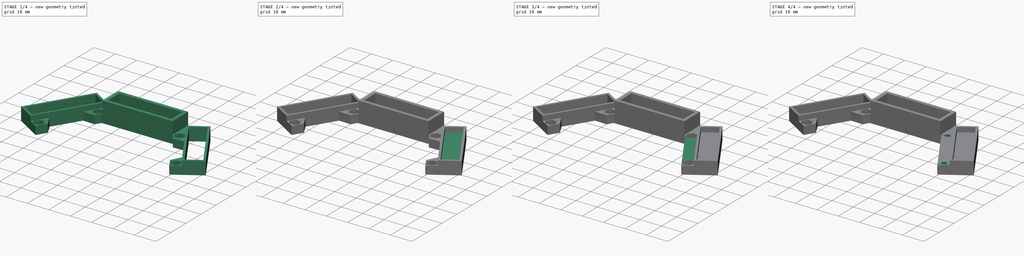
[diagram: build sequence overview — one tinted view per stage of 4, left to right]
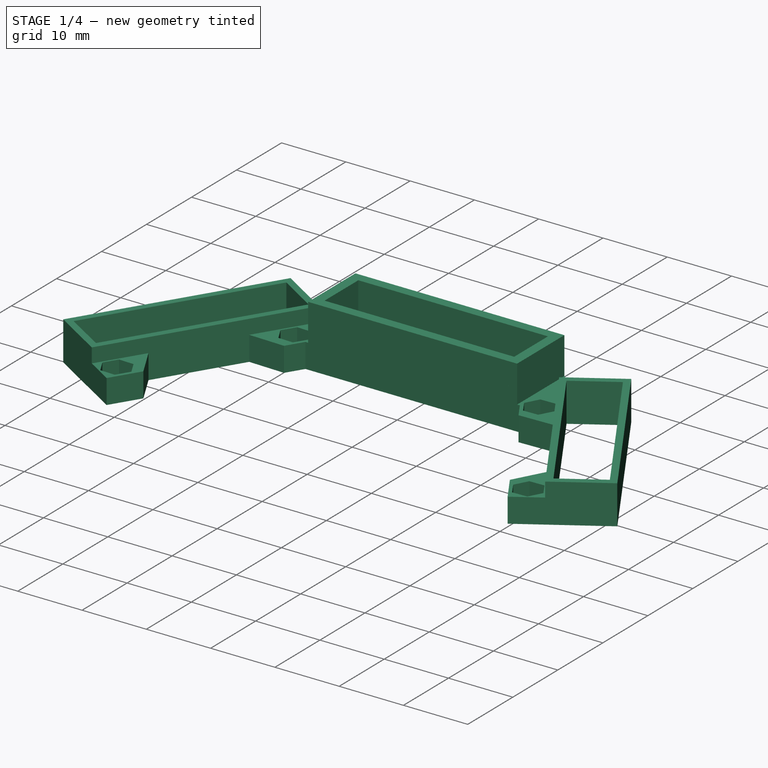
[diagram: stage 1 of 4 — iso view after this stage's code; geometry added in this stage tinted green]
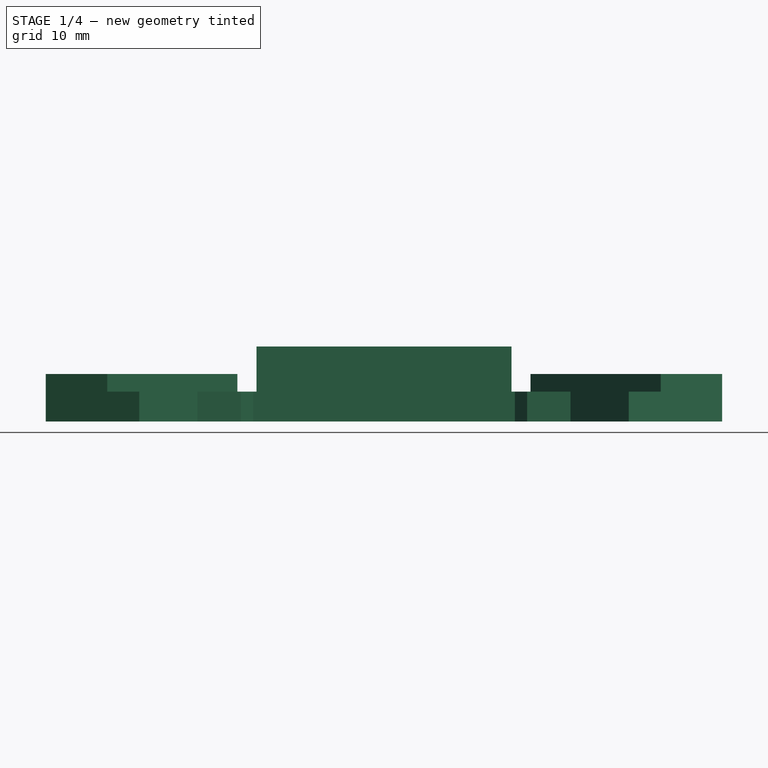
[diagram: stage 1 of 4 — front view after this stage's code; geometry added in this stage tinted green]
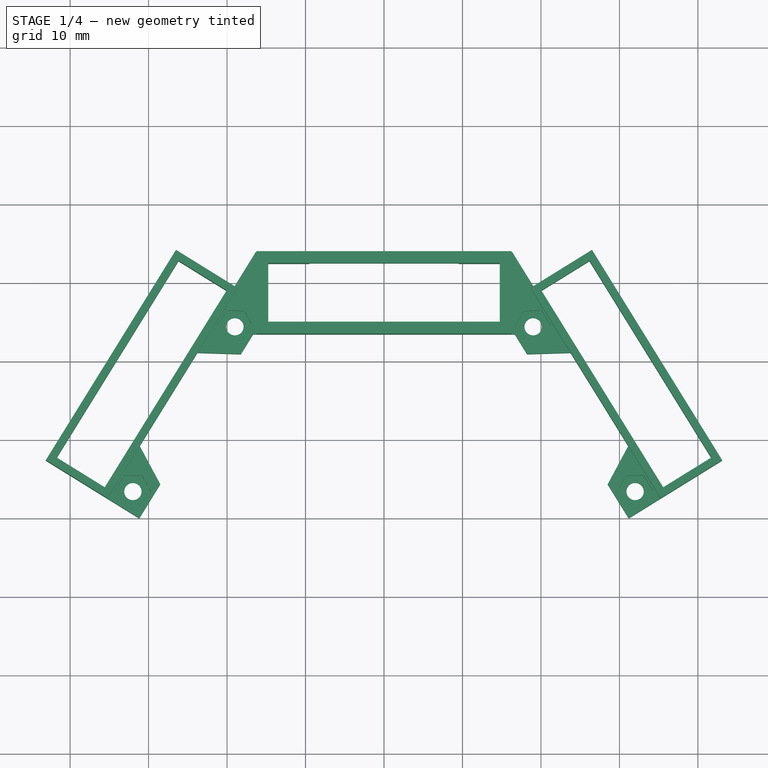
[diagram: stage 1 of 4 — top view after this stage's code; geometry added in this stage tinted green]
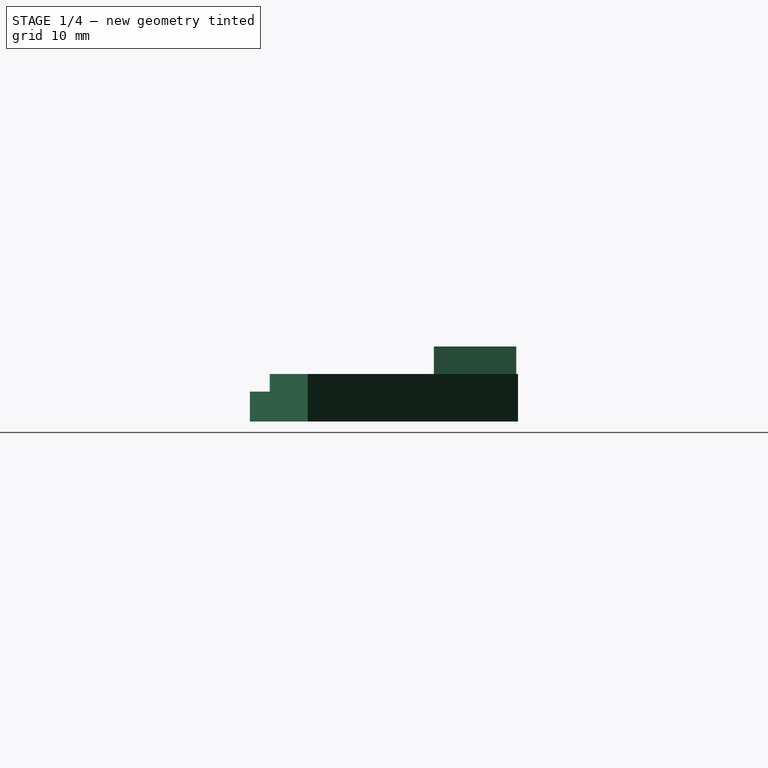
[diagram: stage 1 of 4 — right view after this stage's code; geometry added in this stage tinted green]
FCSTD DOCUMENT  (FreeCAD 0.16R6706 (Git))
Label: Soporte de sensores de distancia
License: All rights reserved
LicenseURL: http://en.wikipedia.org/wiki/All_rights_reserved
objects: Sketcher::SketchObject×9, PartDesign::Pocket×5, PartDesign::Pad×4, Part::Feature×2, Part::Mirroring×1, Part::Fuse×1
note: 31 computed .brp shape members not serialized (recipe doc carries the construction recipe); baked Part::Feature solids carry a one-line shape summary decoded from their .brp

FEATURE [Part::Feature] Pocket004001  label="Pocket005"
  shape: bbox 43.09 x 34.17 x 6.05 mm, 44 faces (baked)
FEATURE [Part::Mirroring] Part__Mirroring  label="Pocket005 (Mirror #1)"
  Base = (0,0,0)
  Normal = (0,0,1)
  Source = -> Pocket004001
FEATURE [Part::Fuse] Fusion
  Base = -> Pocket004001
  Tool = -> Part__Mirroring
FEATURE [Part::Feature] Fusion001  label="Soporte de sensores de distancia V1"
  shape: bbox 86.19 x 34.17 x 6.05 mm, 77 faces (baked)
FEATURE [Sketcher::SketchObject] Sketch008
  ExternalGeometry = -> [Fusion001]
  Placement = pos=(0,0,6.05) rot=(0,0,1;0rad)
  Support = -> Fusion001 [Face76]
  sketch-geometry (8):
    g0: LineSegment StartX=-16.25 StartY=33.9415 StartZ=0 EndX=16.25 EndY=33.9415 EndZ=0
    g1: LineSegment StartX=16.25 StartY=23.4415 StartZ=0 EndX=16.25 EndY=33.9415 EndZ=0
    g2: LineSegment StartX=14.75 StartY=32.4415 StartZ=0 EndX=-14.75 EndY=32.4415 EndZ=0
    g3: LineSegment StartX=-14.75 StartY=32.4415 StartZ=0 EndX=-14.75 EndY=24.9415 EndZ=0
    g4: LineSegment StartX=-14.75 StartY=24.9415 StartZ=0 EndX=14.75 EndY=24.9415 EndZ=0
    g5: LineSegment StartX=14.75 StartY=32.4415 StartZ=0 EndX=14.75 EndY=24.9415 EndZ=0
    g6: LineSegment StartX=16.25 StartY=23.4415 StartZ=0 EndX=-16.25 EndY=23.4415 EndZ=0
    g7: LineSegment StartX=-16.25 StartY=33.9415 StartZ=0 EndX=-16.25 EndY=23.4415 EndZ=0
  constraints (16):
    c: Coincident(g0,g-3)
    c: Coincident(g0,g-7)
    c: Coincident(g1,g-10)
    c: Coincident(g1,g0)
    c: Coincident(g2,g-8)
    c: Coincident(g2,g-6)
    c: Coincident(g3,g2)
    c: Coincident(g3,g-5)
    c: Coincident(g4,g3)
    c: Coincident(g4,g-9)
    c: Coincident(g5,g2)
    c: Coincident(g5,g4)
    c: Coincident(g6,g1)
    c: Coincident(g6,g-4)
    c: Coincident(g7,g0)
    c: Coincident(g7,g6)
FEATURE [PartDesign::Pad] Pad003  label="Soporte de sensores de distancia V2"
  Length = 3.5
  Length2 = 100
  Sketch = -> Sketch008
  Type = 0
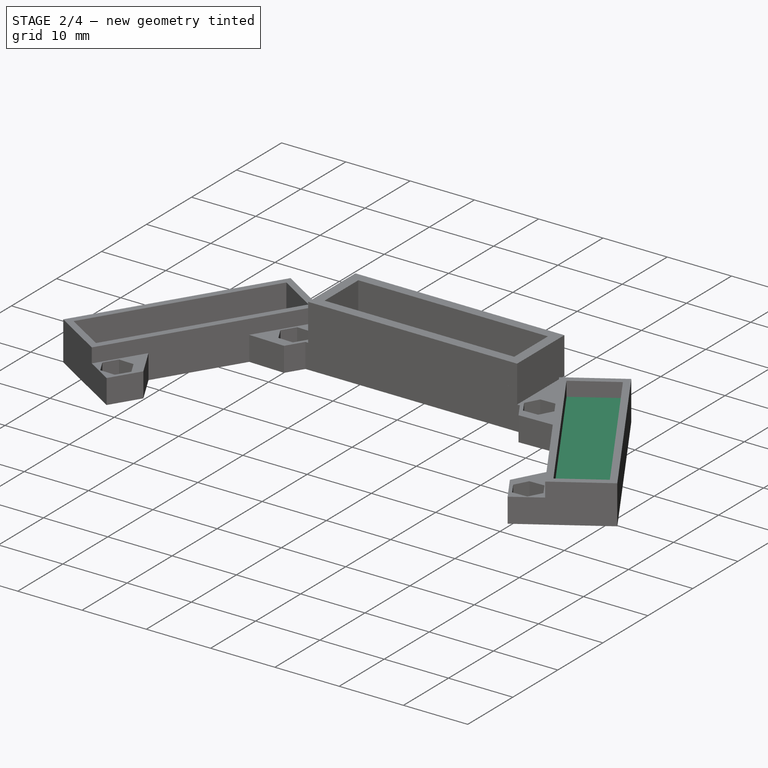
[diagram: stage 2 of 4 — iso view after this stage's code; geometry added in this stage tinted green]
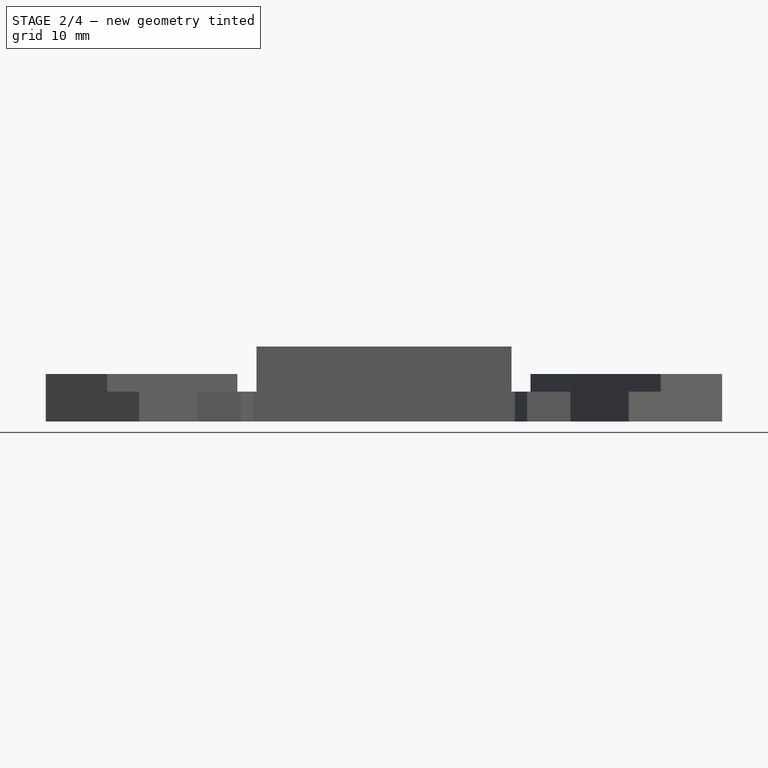
[diagram: stage 2 of 4 — front view after this stage's code; geometry added in this stage tinted green]
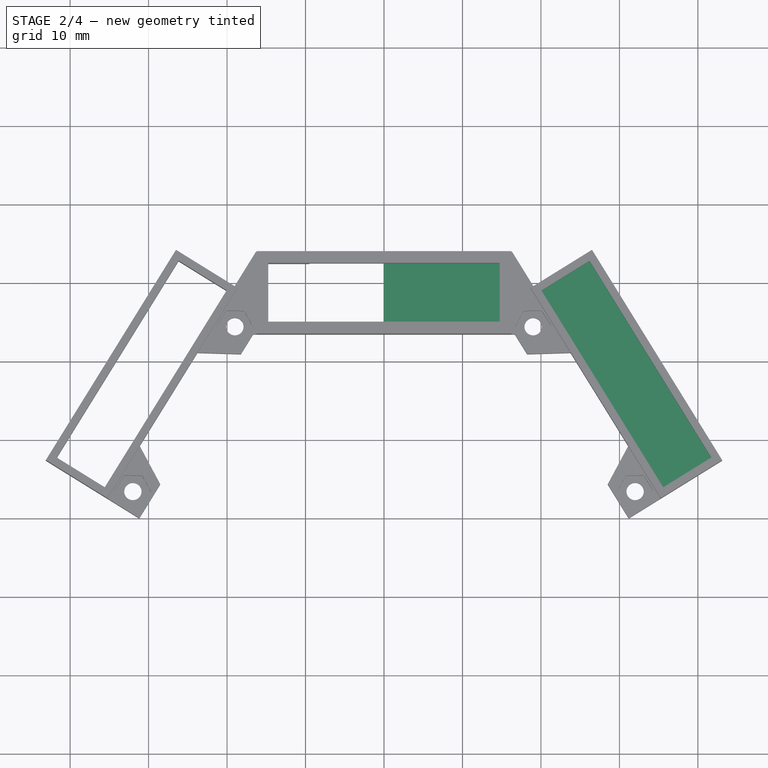
[diagram: stage 2 of 4 — top view after this stage's code; geometry added in this stage tinted green]
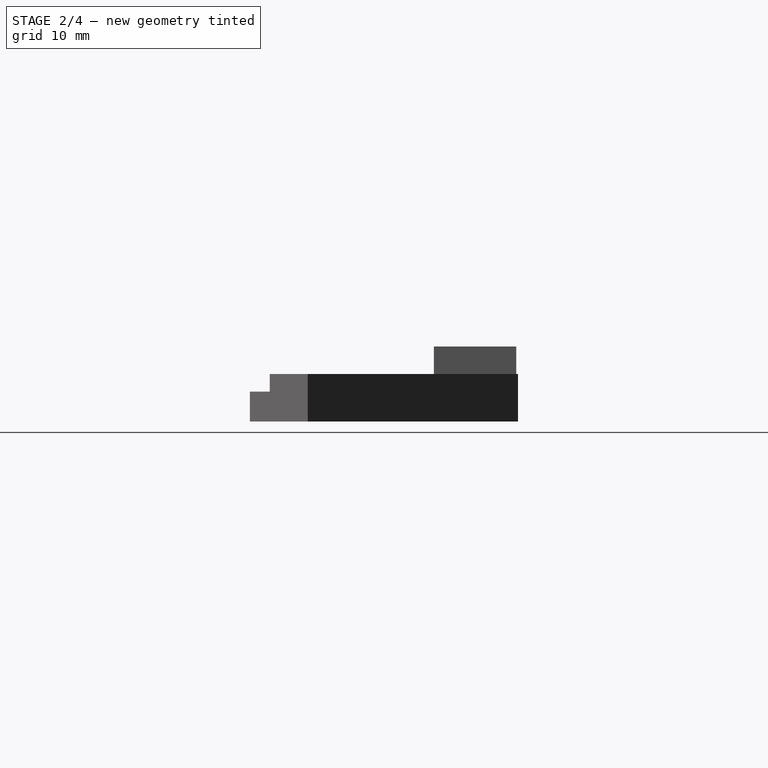
[diagram: stage 2 of 4 — right view after this stage's code; geometry added in this stage tinted green]
FEATURE [Sketcher::SketchObject] Sketch005
  ExternalGeometry = -> [Pad002]
  Placement = pos=(0,0,3.8) rot=(0,0,1;0rad)
  sketch-geometry (6):
    g0: LineSegment StartX=18.2418 StartY=20.9166 StartZ=0 EndX=23.7725 EndY=21.0865 EndZ=0
    g1: LineSegment StartX=23.7725 StartY=21.0865 StartZ=0 EndX=31.125 EndY=9.20937 EndZ=0
    g2: LineSegment StartX=31.125 StartY=9.20937 StartZ=0 EndX=28.5068 EndY=4.33472 EndZ=0
    g3: LineSegment StartX=28.5068 StartY=4.33472 StartZ=0 EndX=18.2418 EndY=20.9166 EndZ=0
    g4: LineSegment [constr] StartX=20.2156 StartY=22.4779 StartZ=0 EndX=20.2616 EndY=20.9787 EndZ=0
    g5: LineSegment [constr] StartX=30.7844 StartY=5.40515 StartZ=0 EndX=29.463 EndY=6.11491 EndZ=0
  constraints (18):
    c: PointOnObject(g0,g-4)
    c: PointOnObject(g0,g-3)
    c: Coincident(g1,g0)
    c: PointOnObject(g1,g-3)
    c: Coincident(g2,g1)
    c: PointOnObject(g2,g-4)
    c: Coincident(g3,g2)
    c: Coincident(g3,g0)
    c: Parallel(g0,g-5)
    c: Coincident(g4,g-5)
    c: PointOnObject(g4,g0)
    c: Perpendicular(g0,g4)
    c: Coincident(g5,g-6)
    c: PointOnObject(g5,g2)
    c: Perpendicular(g5,g2)
    c: Distance(g5) = 1.5
    c: Equal(g4,g5)
    c: Parallel(g2,g-6)
FEATURE [PartDesign::Pocket] Pocket002
  Length = 5
  Type = 1
FEATURE [Sketcher::SketchObject] Sketch006
  ExternalGeometry = -> [Pocket002]
  Placement = pos=(0,0,3.8) rot=(0,0,1;0rad)
  sketch-geometry (4):
    g0: LineSegment StartX=20.0569 StartY=28.9885 StartZ=0 EndX=26.1788 EndY=32.7783 EndZ=0
    g1: LineSegment StartX=26.1788 StartY=32.7783 StartZ=0 EndX=41.7063 EndY=7.69548 EndZ=0
    g2: LineSegment StartX=41.7063 StartY=7.69548 StartZ=0 EndX=35.5844 EndY=3.90572 EndZ=0
    g3: LineSegment StartX=35.5844 StartY=3.90572 StartZ=0 EndX=20.0569 EndY=28.9885 EndZ=0
  constraints (8):
    c: Coincident(g0,g-3)
    c: Coincident(g0,g-4)
    c: Coincident(g1,g0)
    c: Coincident(g1,g-5)
    c: Coincident(g2,g-6)
    c: Coincident(g3,g2)
    c: Coincident(g3,g0)
    c: Coincident(g1,g2)
FEATURE [PartDesign::Pocket] Pocket003
  Length = 5
  Type = 1
FEATURE [Sketcher::SketchObject] Sketch007
  ExternalGeometry = -> [Pocket003]
  Placement = pos=(0,0,3.8) rot=(0,0,1;0rad)
  sketch-geometry (4):
    g0: LineSegment StartX=0 StartY=32.4415 StartZ=0 EndX=0 EndY=24.9415 EndZ=0
    g1: LineSegment StartX=0 StartY=24.9415 StartZ=0 EndX=14.75 EndY=24.9415 EndZ=0
    g2: LineSegment StartX=14.75 StartY=24.9415 StartZ=0 EndX=14.75 EndY=32.4415 EndZ=0
    g3: LineSegment StartX=14.75 StartY=32.4415 StartZ=0 EndX=0 EndY=32.4415 EndZ=0
  constraints (11):
    c: Coincident(g0,g-3)
    c: Coincident(g0,g-4)
    c: Coincident(g1,g-5)
    c: Horizontal(g1)
    c: Vertical(g2)
    c: Coincident(g3,g0)
    c: Horizontal(g3)
    c: Coincident(g3,g-6)
    c: Coincident(g2,g3)
    c: Coincident(g1,g2)
    c: Coincident(g1,g0)
FEATURE [PartDesign::Pocket] Pocket004
  Length = 5
  Type = 1
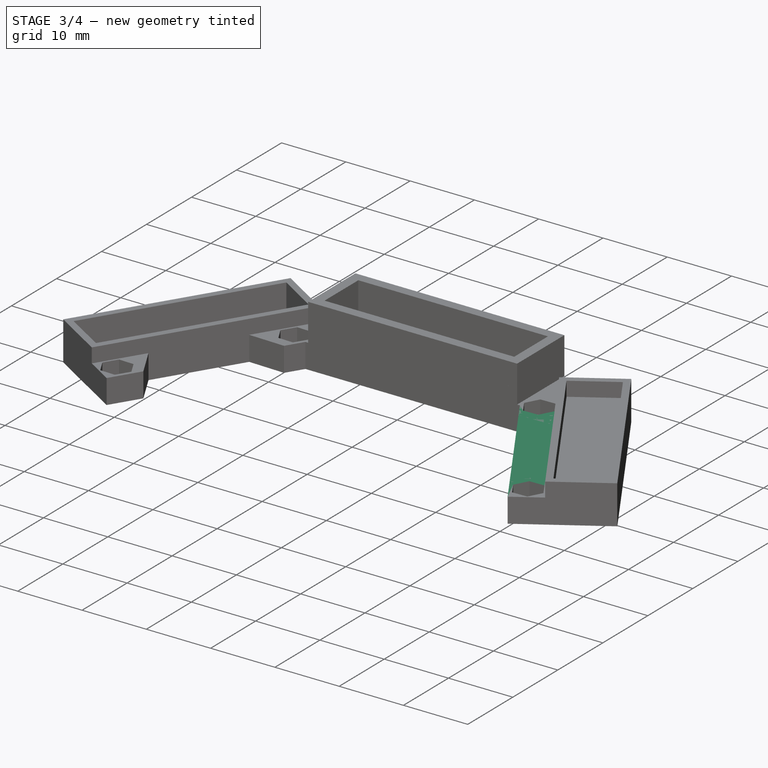
[diagram: stage 3 of 4 — iso view after this stage's code; geometry added in this stage tinted green]
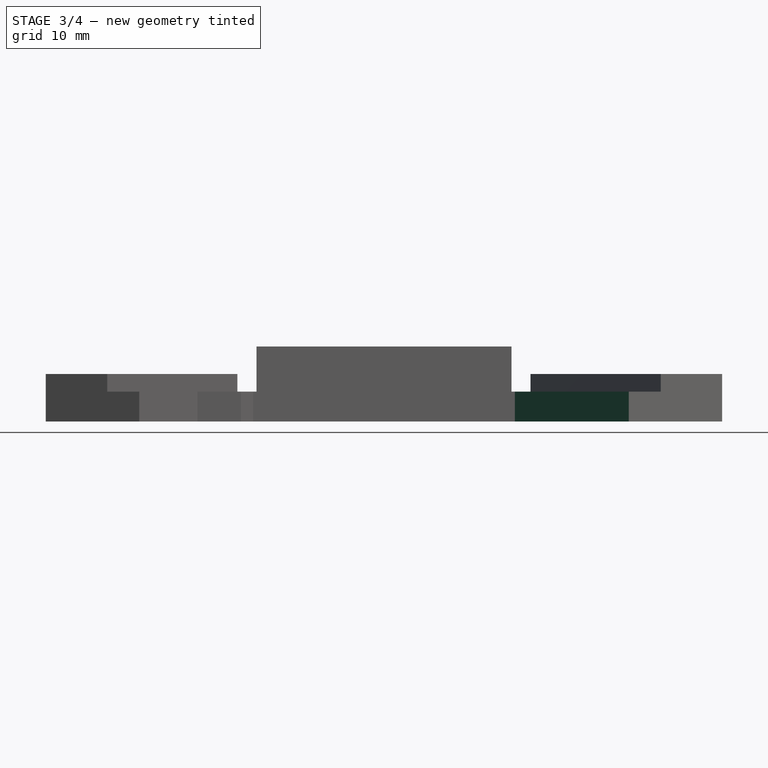
[diagram: stage 3 of 4 — front view after this stage's code; geometry added in this stage tinted green]
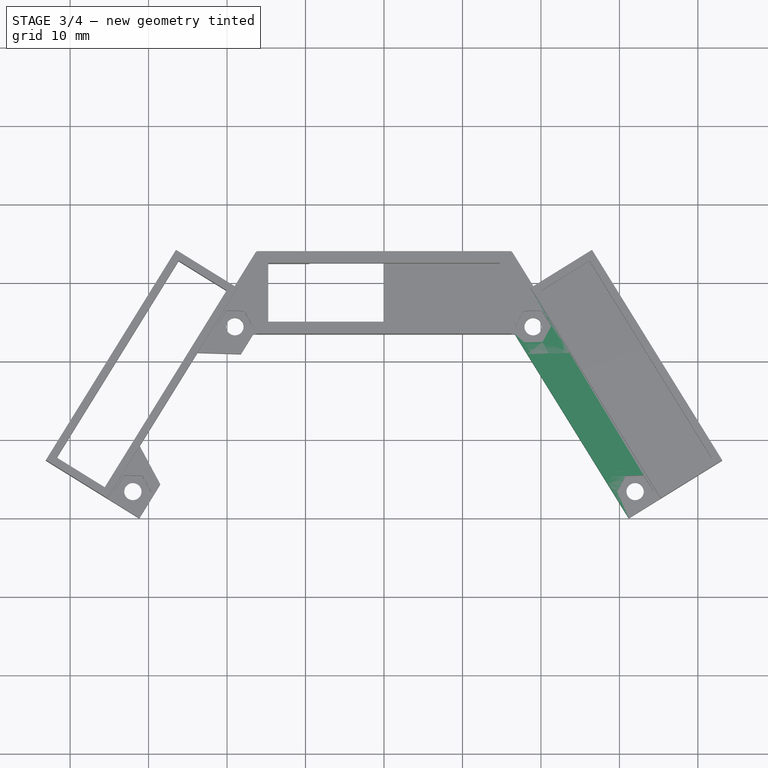
[diagram: stage 3 of 4 — top view after this stage's code; geometry added in this stage tinted green]
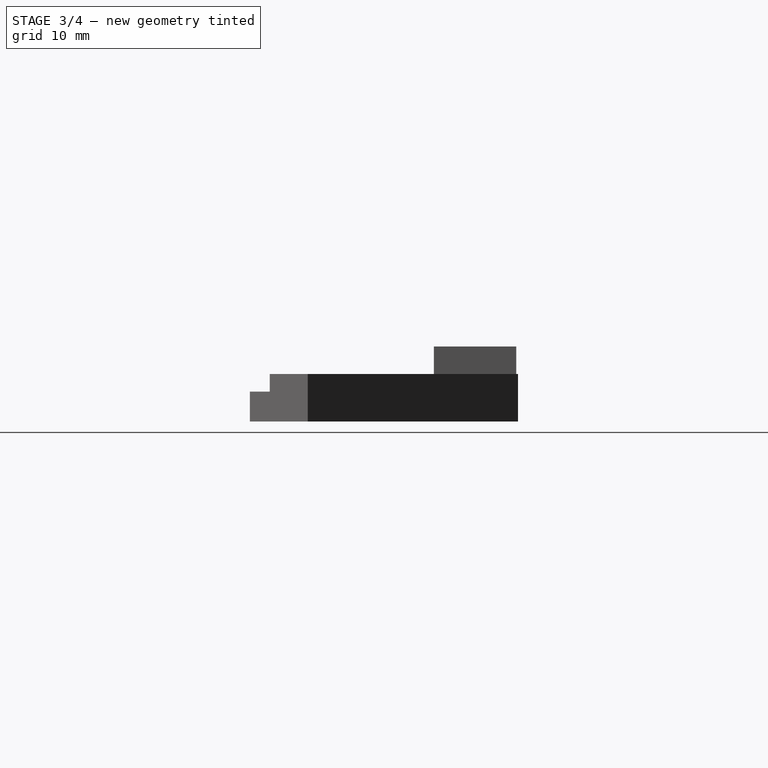
[diagram: stage 3 of 4 — right view after this stage's code; geometry added in this stage tinted green]
FEATURE [Sketcher::SketchObject] Sketch003
  ExternalGeometry = -> [Pocket001]
  Placement = pos=(0,0,3.8) rot=(0,0,1;0rad)
  sketch-geometry (17):
    g0: LineSegment StartX=20.0569 StartY=28.9885 StartZ=0 EndX=35.5844 EndY=3.90572 EndZ=0
    g1: LineSegment StartX=35.5844 StartY=3.90572 StartZ=0 EndX=41.7063 EndY=7.69548 EndZ=0
    g2: LineSegment StartX=41.7063 StartY=7.69548 StartZ=0 EndX=26.1788 EndY=32.7783 EndZ=0
    g3: LineSegment StartX=26.1788 StartY=32.7783 StartZ=0 EndX=20.0569 EndY=28.9885 EndZ=0
    g4: LineSegment [constr] StartX=41.7063 StartY=7.69548 StartZ=0 EndX=42.2368 EndY=6.83838 EndZ=0
    g5: LineSegment [constr] StartX=26.1788 StartY=32.7783 StartZ=0 EndX=25.6482 EndY=33.6354 EndZ=0
    g6: LineSegment [constr] StartX=26.1788 StartY=32.7783 StartZ=0 EndX=27.0359 EndY=33.3089 EndZ=0
    g7: LineSegment StartX=19.0498 StartY=29.5506 StartZ=0 EndX=26.5053 EndY=34.166 EndZ=0
    g8: LineSegment [constr] StartX=31.1902 StartY=0 StartZ=0 EndX=43.0939 EndY=7.36896 EndZ=0
    g9: LineSegment StartX=43.0939 StartY=7.36896 StartZ=0 EndX=26.5053 EndY=34.166 EndZ=0
    g10: LineSegment StartX=19.0498 StartY=29.5506 StartZ=0 EndX=18.676 EndY=29.3193 EndZ=0
    g11: LineSegment StartX=18.676 StartY=29.3193 StartZ=0 EndX=35.2647 EndY=2.52228 EndZ=0
    g12: LineSegment StartX=35.2647 StartY=2.52228 StartZ=0 EndX=43.0939 EndY=7.36896 EndZ=0
    g13: LineSegment [constr] StartX=26.1788 StartY=32.7783 StartZ=0 EndX=31.5355 EndY=36.0943 EndZ=0
    g14: LineSegment [constr] StartX=31.5355 StartY=36.0943 StartZ=0 EndX=47.0629 EndY=11.0115 EndZ=0
    g15: LineSegment [constr] StartX=47.0629 StartY=11.0115 StartZ=0 EndX=41.7063 EndY=7.69548 EndZ=0
    g16: LineSegment [constr] StartX=20.0569 StartY=28.9885 StartZ=0 EndX=19.5263 EndY=29.8456 EndZ=0
  constraints (46):
    c: Coincident(g1,g0)
    c: Coincident(g2,g1)
    c: Coincident(g3,g2)
    c: Coincident(g3,g0)
    c: Perpendicular(g0,g3)
    c: Perpendicular(g2,g3)
    c: Perpendicular(g2,g1)
    c: Distance(g2) = 29.5
    c: Distance(g3) = 7.2
    c: Coincident(g4,g1)
    c: Coincident(g5,g2)
    c: Equal(g4,g5)
    c: Coincident(g6,g2)
    c: Equal(g6,g5)
    c: Coincident(g8,g-4)
    c: Coincident(g9,g8)
    c: Coincident(g9,g7)
    c: Coincident(g7,g-6)
    c: PointOnObject(g5,g7)
    c: PointOnObject(g6,g9)
    c: Perpendicular(g7,g5)
    c: Perpendicular(g9,g6)
    c: Parallel(g2,g9)
    c: PointOnObject(g4,g8)
    c: Perpendicular(g8,g4)
    c: Coincident(g8,g-3)
    c: Coincident(g11,g10)
    c: PointOnObject(g11,g8)
    c: Parallel(g11,g0)
    c: Perpendicular(g11,g10)
    c: Coincident(g12,g11)
    c: Coincident(g12,g8)
    c: Coincident(g13,g2)
    c: Coincident(g14,g13)
    c: Coincident(g15,g1)
    c: Coincident(g14,g15)
    c: Parallel(g15,g1)
    c: Parallel(g13,g3)
    c: Parallel(g14,g9)
    c: Distance(g13,g0) = 13.5
    c: Coincident(g16,g0)
    c: PointOnObject(g16,g7)
    c: Perpendicular(g7,g16)
    c: Distance(g10,g16) = 1
    c: Coincident(g7,g-5)
    c: Coincident(g10,g7)
FEATURE [PartDesign::Pad] Pad001
  Length = 2.25
  Length2 = 100
  Type = 0
FEATURE [Sketcher::SketchObject] Sketch004
  ExternalGeometry = -> [Pad001]
  Placement = pos=(0,0,3.8) rot=(0,0,1;0rad)
  sketch-geometry (8):
    g0: LineSegment StartX=0 StartY=33.9415 StartZ=0 EndX=0 EndY=32.4415 EndZ=0
    g1: LineSegment StartX=0 StartY=32.4415 StartZ=0 EndX=14.75 EndY=32.4415 EndZ=0
    g2: LineSegment StartX=14.75 StartY=32.4415 StartZ=0 EndX=14.75 EndY=24.9415 EndZ=0
    g3: LineSegment StartX=14.75 StartY=24.9415 StartZ=0 EndX=0 EndY=24.9415 EndZ=0
    g4: LineSegment StartX=0 StartY=24.9415 StartZ=0 EndX=0 EndY=23.4415 EndZ=0
    g5: LineSegment StartX=0 StartY=23.4415 StartZ=0 EndX=16.25 EndY=23.4415 EndZ=0
    g6: LineSegment StartX=16.25 StartY=23.4415 StartZ=0 EndX=16.25 EndY=33.9415 EndZ=0
    g7: LineSegment StartX=16.25 StartY=33.9415 StartZ=0 EndX=0 EndY=33.9415 EndZ=0
  constraints (22):
    c: Coincident(g1,g0)
    c: Horizontal(g1)
    c: Coincident(g2,g1)
    c: Vertical(g2)
    c: Coincident(g3,g2)
    c: Horizontal(g3)
    c: Coincident(g4,g3)
    c: Coincident(g5,g4)
    c: Horizontal(g5)
    c: Coincident(g6,g5)
    c: Vertical(g6)
    c: Coincident(g7,g6)
    c: Coincident(g7,g0)
    c: DistanceY(g4,g3) = 1.5
    c: Equal(g0,g4)
    c: Parallel(g0,g4)
    c: Vertical(g4)
    c: DistanceX(g1,g6) = 1.5
    c: DistanceX(g1,g1) = 14.75
    c: Coincident(g4,g-3)
    c: Coincident(g0,g-4)
    c: Parallel(g7,g1)
FEATURE [PartDesign::Pad] Pad002
  Length = 10
  Length2 = 100
  Type = 3
  UpToFace = -> Pad001 [Face35]
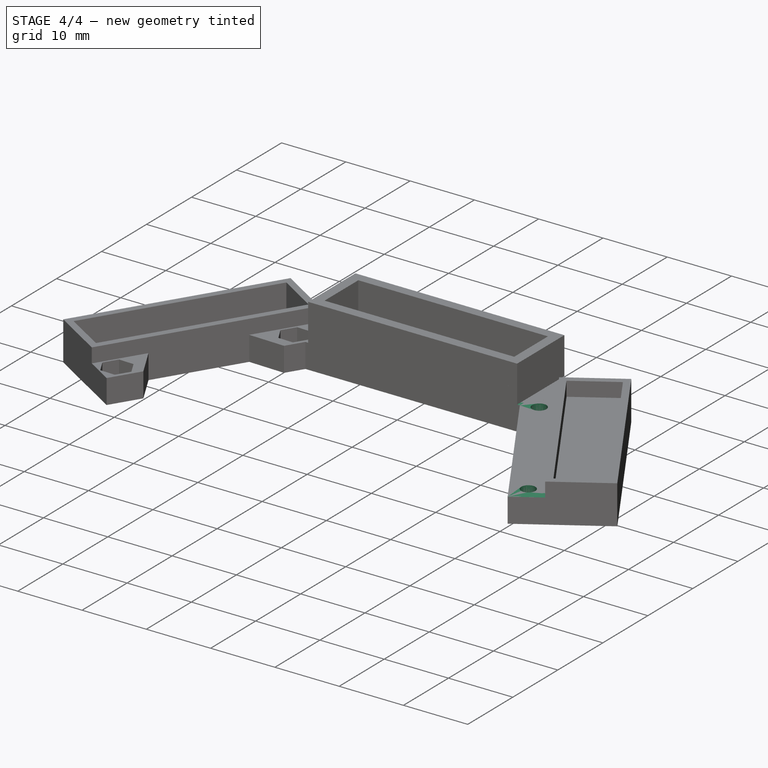
[diagram: stage 4 of 4 — iso view after this stage's code; geometry added in this stage tinted green]
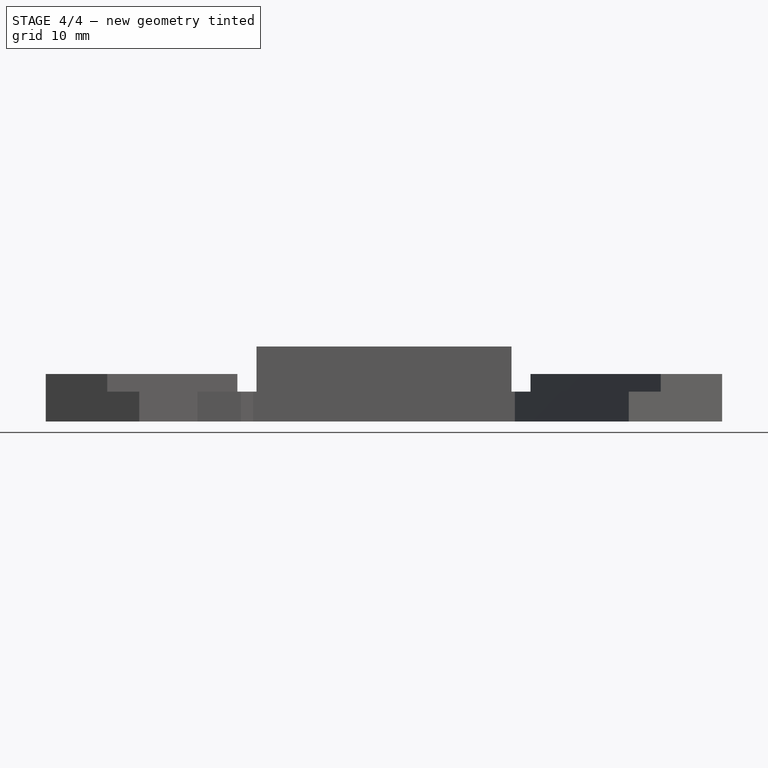
[diagram: stage 4 of 4 — front view after this stage's code; geometry added in this stage tinted green]
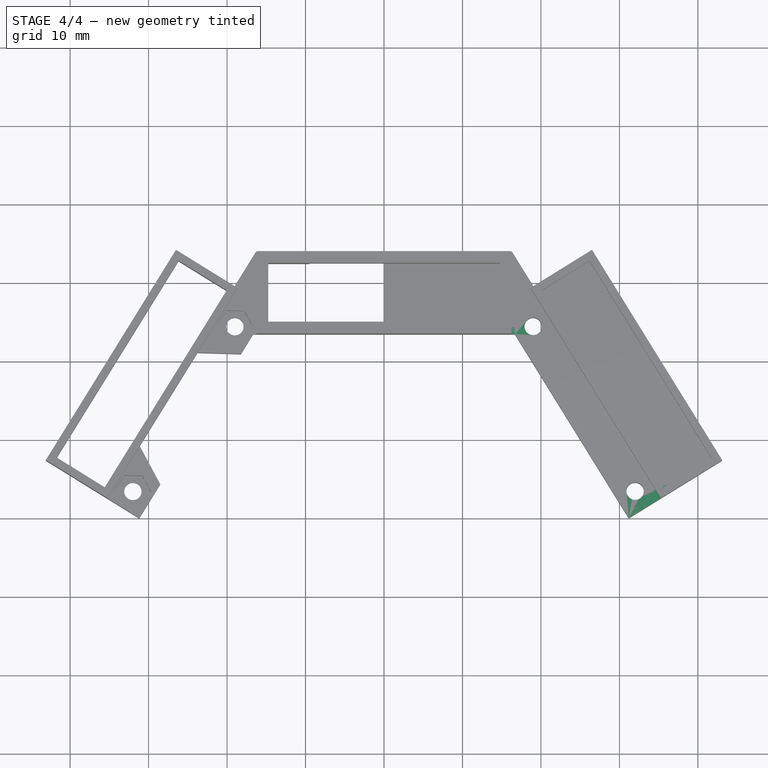
[diagram: stage 4 of 4 — top view after this stage's code; geometry added in this stage tinted green]
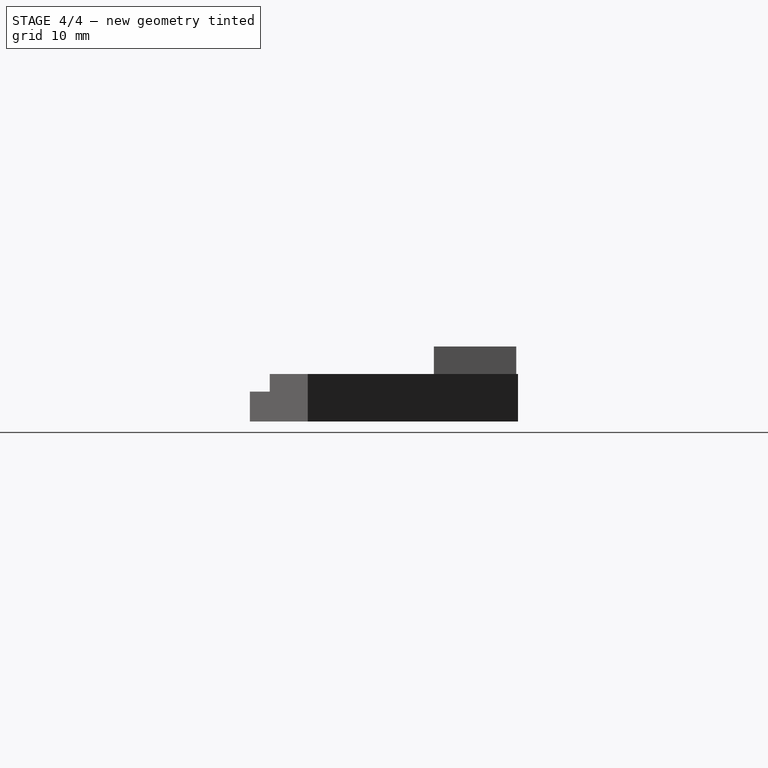
[diagram: stage 4 of 4 — right view after this stage's code; geometry added in this stage tinted green]
FEATURE [Sketcher::SketchObject] Sketch
  sketch-geometry (16):
    g0: LineSegment StartX=0 StartY=23.4415 StartZ=0 EndX=16.6788 EndY=23.4415 EndZ=0
    g1: LineSegment StartX=16.6788 StartY=23.4415 StartZ=0 EndX=31.1902 EndY=0 EndZ=0
    g2: LineSegment StartX=31.1902 StartY=0 StartZ=0 EndX=43.0939 EndY=7.36896 EndZ=0
    g3: LineSegment StartX=43.0939 StartY=7.36896 StartZ=0 EndX=26.5053 EndY=34.166 EndZ=0
    g4: LineSegment StartX=0 StartY=23.4415 StartZ=0 EndX=0 EndY=33.9415 EndZ=0
    g5: Circle CenterX=19 CenterY=24.4415 CenterZ=0 NormalX=0 NormalY=0 NormalZ=1 Radius=1.1
    g6: Circle CenterX=32 CenterY=3.44155 CenterZ=0 NormalX=0 NormalY=0 NormalZ=1 Radius=1.1
    g7: LineSegment [constr] StartX=19 StartY=24.4415 StartZ=0 EndX=32 EndY=3.44155 EndZ=0
    g8: LineSegment [constr] StartX=32 StartY=3.44155 StartZ=0 EndX=29.8743 EndY=2.12566 EndZ=0
    g9: LineSegment [constr] StartX=32 StartY=3.44155 StartZ=0 EndX=33.3159 EndY=1.31589 EndZ=0
    g10: Circle [constr] CenterX=19.73 CenterY=32.4415 CenterZ=0 NormalX=0 NormalY=0 NormalZ=1 Radius=1.7
    g11: LineSegment StartX=26.5053 StartY=34.166 StartZ=0 EndX=19.0498 EndY=29.5506 EndZ=0
    g12: LineSegment StartX=19.0498 StartY=29.5506 StartZ=0 EndX=16.3316 EndY=33.9415 EndZ=0
    g13: LineSegment StartX=0 StartY=33.9415 StartZ=0 EndX=16.3316 EndY=33.9415 EndZ=0
    g14: LineSegment [constr] StartX=19.73 StartY=32.4415 StartZ=0 EndX=17.9444 EndY=31.3362 EndZ=0
    g15: LineSegment [constr] StartX=19.73 StartY=32.4415 StartZ=0 EndX=20.8353 EndY=30.656 EndZ=0
  constraints (47):
    c: PointOnObject(g0,g-2)
    c: Horizontal(g0)
    c: Coincident(g1,g0)
    c: PointOnObject(g1,g-1)
    c: Coincident(g2,g1)
    c: Coincident(g3,g2)
    c: PointOnObject(g4,g-2)
    c: Coincident(g4,g0)
    c: Radius(g5) = 1.1
    c: Radius(g6) = 1.1
    c: DistanceY(g4,g4) = 10.5
    c: Distance(g2) = 14
    c: Parallel(g1,g3)
    c: Perpendicular(g2,g1)
    c: DistanceX(g0,g5) = 19
    c: DistanceX(g-1,g6) = 32
    c: DistanceY(g6,g5) = 21
    c: DistanceY(g0,g5) = 1
    c: Coincident(g7,g5)
    c: Coincident(g7,g6)
    c: Parallel(g7,g1)
    c: Coincident(g8,g6)
    c: PointOnObject(g8,g1)
    c: Coincident(g9,g6)
    c: PointOnObject(g9,g2)
    c: Perpendicular(g1,g8)
    c: Perpendicular(g2,g9)
    c: Equal(g8,g9)
    c: Distance(g1,g9) = 2.5
    c: Radius(g10) = 1.7
    c: DistanceX(g0,g10) = 19.73
    c: DistanceY(g5,g10) = 8
    c: Coincident(g11,g3)
    c: Coincident(g12,g11)
    c: Coincident(g13,g4)
    c: Coincident(g13,g12)
    c: Horizontal(g13)
    c: Parallel(g12,g1)
    c: Perpendicular(g12,g11)
    c: Coincident(g14,g10)
    c: PointOnObject(g14,g12)
    c: Perpendicular(g12,g14)
    c: Coincident(g15,g10)
    c: PointOnObject(g15,g11)
    c: Perpendicular(g11,g15)
    c: Equal(g14,g15)
    c: Distance(g14) = 2.1
FEATURE [PartDesign::Pad] Pad
  Length = 3.8
  Length2 = 100
  Type = 0
FEATURE [Sketcher::SketchObject] Sketch001
  ExternalGeometry = -> [Pad]
  Placement = pos=(0,0,0) rot=(1,0,0;3.14159rad)
  sketch-geometry (4):
    g0: LineSegment StartX=0 StartY=-30.9415 StartZ=0 EndX=9.5 EndY=-30.9415 EndZ=0
    g1: LineSegment StartX=9.5 StartY=-30.9415 StartZ=0 EndX=9.5 EndY=-33.9415 EndZ=0
    g2: LineSegment StartX=9.5 StartY=-33.9415 StartZ=0 EndX=0 EndY=-33.9415 EndZ=0
    g3: LineSegment StartX=0 StartY=-33.9415 StartZ=0 EndX=0 EndY=-30.9415 EndZ=0
  constraints (11):
    c: PointOnObject(g0,g-3)
    c: Horizontal(g0)
    c: Coincident(g1,g0)
    c: PointOnObject(g1,g-4)
    c: Vertical(g1)
    c: Coincident(g2,g1)
    c: Coincident(g2,g-4)
    c: Coincident(g3,g2)
    c: Coincident(g3,g0)
    c: DistanceX(g0,g0) = 9.5
    c: DistanceY(g0,g-5) = 6.5
FEATURE [PartDesign::Pocket] Pocket
  Length = 3.6
  Type = 0
FEATURE [Sketcher::SketchObject] Sketch002
  ExternalGeometry = -> [Pocket]
  Placement = pos=(0,0,3.8) rot=(0,0,1;0rad)
  sketch-geometry (14):
    g0: LineSegment StartX=20.0927 StartY=26.4761 StartZ=0 EndX=17.7844 EndY=26.4052 EndZ=0
    g1: LineSegment StartX=17.7844 StartY=26.4052 StartZ=0 EndX=16.6917 EndY=24.3706 EndZ=0
    g2: LineSegment StartX=16.6917 StartY=24.3706 StartZ=0 EndX=17.9073 EndY=22.407 EndZ=0
    g3: LineSegment StartX=17.9073 StartY=22.407 StartZ=0 EndX=20.2156 EndY=22.4779 EndZ=0
    g4: LineSegment StartX=20.2156 StartY=22.4779 StartZ=0 EndX=21.3083 EndY=24.5125 EndZ=0
    g5: LineSegment StartX=21.3083 StartY=24.5125 StartZ=0 EndX=20.0927 EndY=26.4761 EndZ=0
    g6: Circle [constr] CenterX=19 CenterY=24.4415 CenterZ=0 NormalX=0 NormalY=0 NormalZ=1 Radius=2.3094
    g7: LineSegment StartX=33.0927 StartY=5.47606 StartZ=0 EndX=30.7844 EndY=5.40515 EndZ=0
    g8: LineSegment StartX=30.7844 StartY=5.40515 StartZ=0 EndX=29.6917 EndY=3.37064 EndZ=0
    g9: LineSegment StartX=29.6917 StartY=3.37064 StartZ=0 EndX=30.9073 EndY=1.40704 EndZ=0
    g10: LineSegment StartX=30.9073 StartY=1.40704 StartZ=0 EndX=33.2156 EndY=1.47795 EndZ=0
    g11: LineSegment StartX=33.2156 StartY=1.47795 StartZ=0 EndX=34.3083 EndY=3.51246 EndZ=0
    g12: LineSegment StartX=34.3083 StartY=3.51246 StartZ=0 EndX=33.0927 EndY=5.47606 EndZ=0
    g13: Circle [constr] CenterX=32 CenterY=3.44155 CenterZ=0 NormalX=0 NormalY=0 NormalZ=1 Radius=2.3094
  constraints (32):
    c: Coincident(g0,g1)
    c: Coincident(g1,g2)
    c: Coincident(g2,g3)
    c: Coincident(g3,g4)
    c: Coincident(g4,g5)
    c: Coincident(g5,g0)
    c: Equal(g0, g1-g5) x5
    c: PointOnObject(g0,g6)
    c: PointOnObject(g1,g6)
    c: PointOnObject(g2,g6)
    c: PointOnObject(g3,g6)
    c: PointOnObject(g4,g6)
    c: PointOnObject(g5,g6)
    c: Coincident(g6,g-3)
    c: Coincident(g7,g8)
    c: Coincident(g8,g9)
    c: Coincident(g9,g10)
    c: Coincident(g10,g11)
    c: Coincident(g11,g12)
    c: Coincident(g12,g7)
    c: Equal(g7, g8-g12) x5
    c: PointOnObject(g7,g13)
    c: PointOnObject(g8,g13)
    c: PointOnObject(g9,g13)
    c: PointOnObject(g10,g13)
    c: PointOnObject(g11,g13)
    c: PointOnObject(g12,g13)
    c: Coincident(g13,g-4)
    c: Parallel(g9,g-5)
    c: Parallel(g2,g-5)
    c: Distance(g0,g3) = 4
    c: Distance(g7,g10) = 4
FEATURE [PartDesign::Pocket] Pocket001
  Length = 2.3
  Type = 0
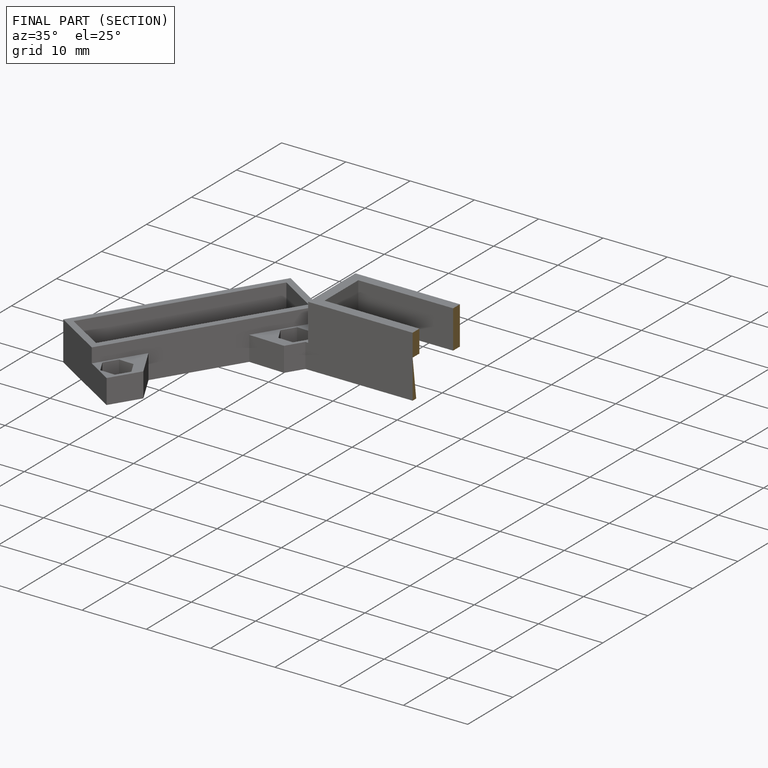
[diagram: finished part — half-section view (interior)]
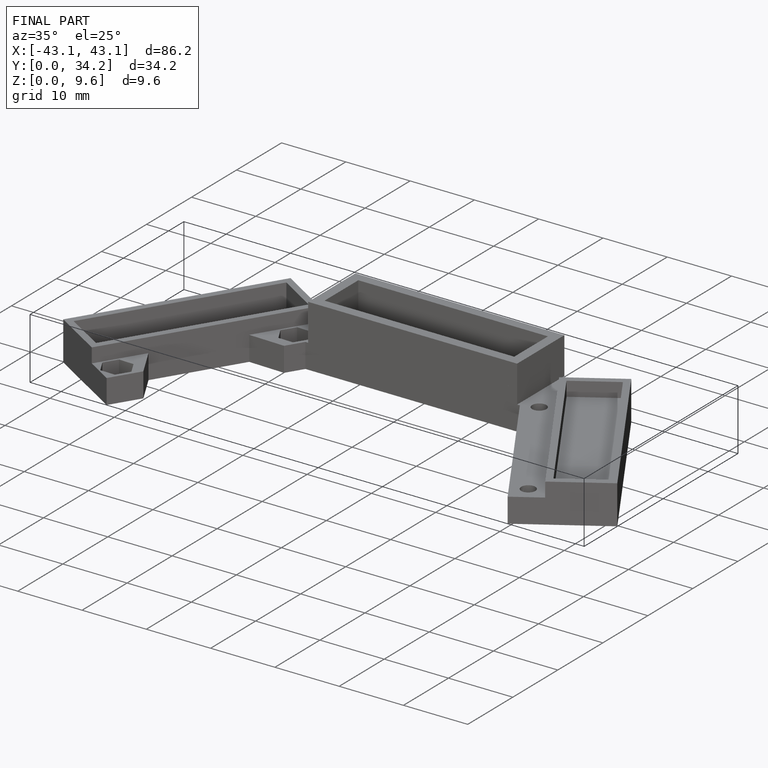
[diagram: finished part — iso view with bounding-box wireframe]
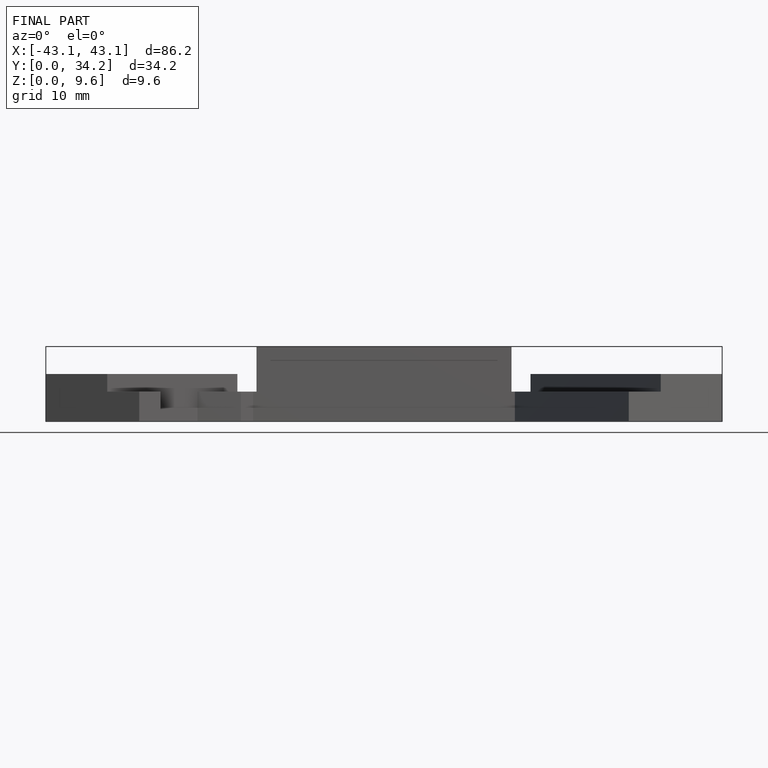
[diagram: finished part — front view with bounding-box wireframe]
